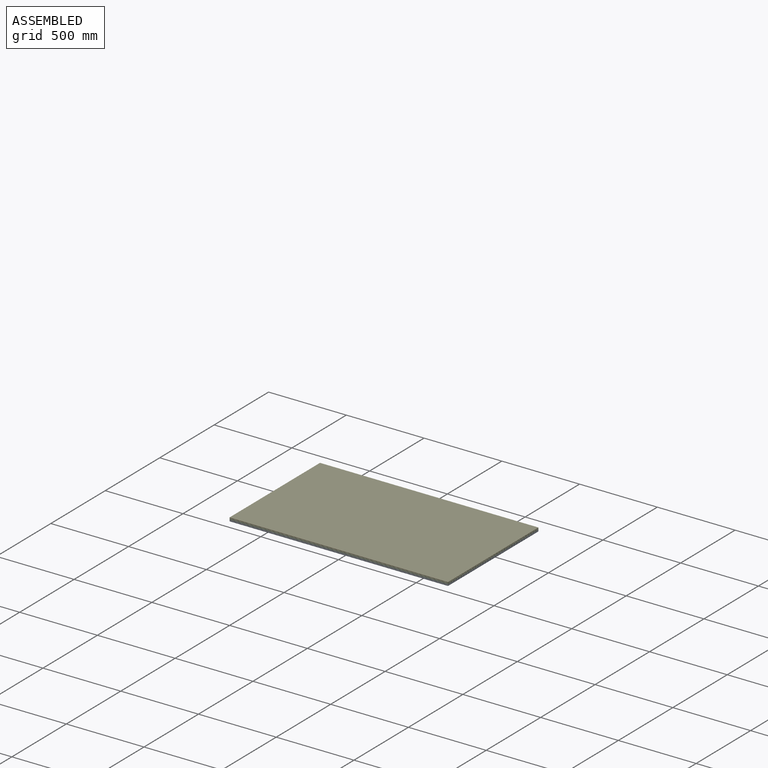
[diagram: assembled view]
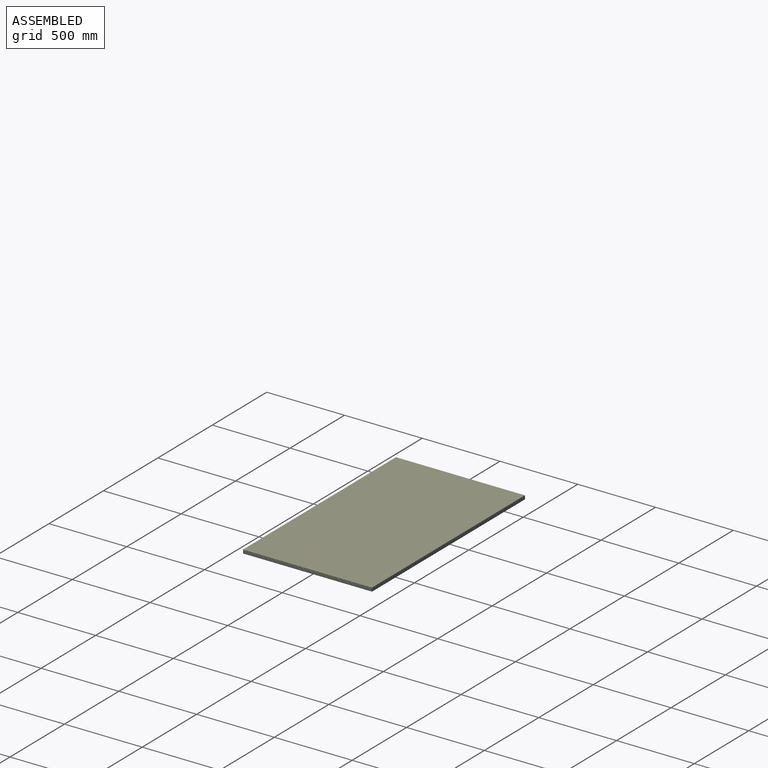
[diagram: assembled view, second angle]
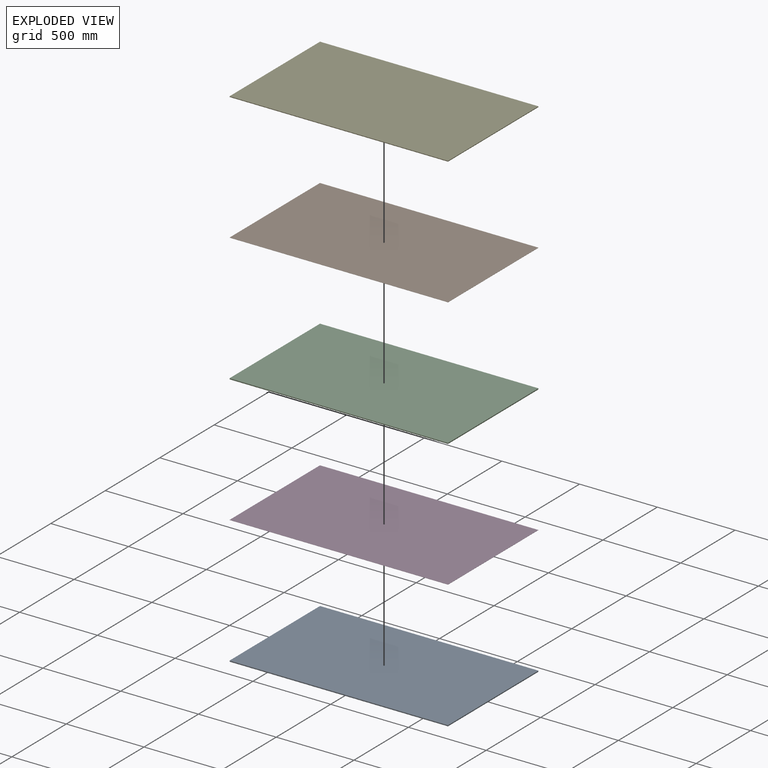
[diagram: exploded view]
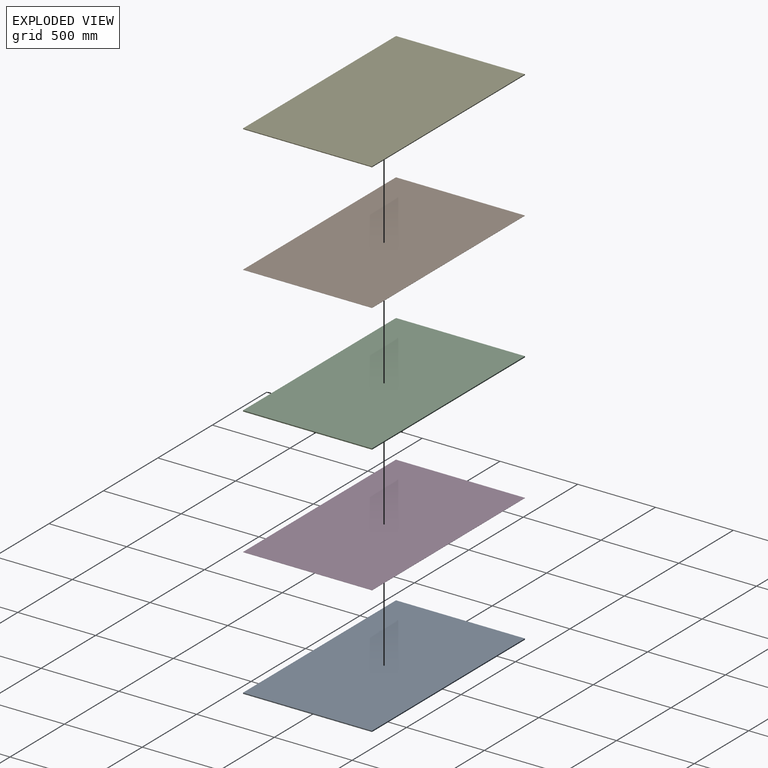
[diagram: exploded view, second angle]
ASSEMBLY  parts=5 mates=4
PART A: 14 faces, bbox 1405x830x8 mm
  f0: plane 1405x6mm, normal (0,1,0), area 8430mm2, adj f1,f3,f7,f11
  f1: plane 830x6mm, normal (-1,0,0), area 4980mm2, adj f0,f2,f6,f10
  f2: plane 1405x6mm, normal (0,-1,0), area 8430mm2, adj f1,f3,f8,f12
  f3: plane 830x6mm, normal (1,0,0), area 4980mm2, adj f0,f2,f9,f13
  f4: plane 1403x828mm, normal (0,0,1), area 1161684mm2, adj f10,f11,f12,f13
  f5: plane 1403x828mm, normal (0,0,-1), area 1161684mm2, adj f6,f7,f8,f9
  f6: plane 830x1mm, normal (-0.71,0,-0.71), area 1172.4mm2, adj f1,f5,f7,f8
  f7: plane 1405x1mm, normal (0,0.71,-0.71), area 1985.6mm2, adj f0,f5,f6,f9
  f8: plane 1405x1mm, normal (0,-0.71,-0.71), area 1985.6mm2, adj f2,f5,f6,f9
  f9: plane 830x1mm, normal (0.71,0,-0.71), area 1172.4mm2, adj f3,f5,f7,f8
  f10: plane 830x1mm, normal (-0.71,0,0.71), area 1172.4mm2, adj f1,f4,f11,f12
  f11: plane 1405x1mm, normal (0,0.71,0.71), area 1985.6mm2, adj f0,f4,f10,f13
  f12: plane 1405x1mm, normal (0,-0.71,0.71), area 1985.6mm2, adj f2,f4,f10,f13
  f13: plane 830x1mm, normal (0.71,0,0.71), area 1172.4mm2, adj f3,f4,f11,f12
PART B: 6 faces, bbox 1405x830x1 mm
  f0: plane 1405x1mm, normal (0,1,0), area 1405mm2, adj f1,f3,f4,f5
  f1: plane 830x1mm, normal (-1,0,0), area 830mm2, adj f0,f2,f4,f5
  f2: plane 1405x1mm, normal (0,-1,0), area 1405mm2, adj f1,f3,f4,f5
  f3: plane 830x1mm, normal (1,0,0), area 830mm2, adj f0,f2,f4,f5
  f4: plane 1405x830mm, normal (0,0,1), area 1166150mm2, adj f0,f1,f2,f3
  f5: plane 1405x830mm, normal (0,0,-1), area 1166150mm2, adj f0,f1,f2,f3
PART C: same geometry as A
PART D: same geometry as B
PART E: 14 faces, bbox 1405x830x6 mm
  f0: plane 1405x4mm, normal (0,1,0), area 5620mm2, adj f1,f3,f7,f11
  f1: plane 830x4mm, normal (-1,0,0), area 3320mm2, adj f0,f2,f6,f10
  f2: plane 1405x4mm, normal (0,-1,0), area 5620mm2, adj f1,f3,f8,f12
  f3: plane 830x4mm, normal (1,0,0), area 3320mm2, adj f0,f2,f9,f13
  f4: plane 1403x828mm, normal (0,0,1), area 1161684mm2, adj f10,f11,f12,f13
  f5: plane 1403x828mm, normal (0,0,-1), area 1161684mm2, adj f6,f7,f8,f9
  f6: plane 830x1mm, normal (-0.71,0,-0.71), area 1172.4mm2, adj f1,f5,f7,f8
  f7: plane 1405x1mm, normal (0,0.71,-0.71), area 1985.6mm2, adj f0,f5,f6,f9
  f8: plane 1405x1mm, normal (0,-0.71,-0.71), area 1985.6mm2, adj f2,f5,f6,f9
  f9: plane 830x1mm, normal (0.71,0,-0.71), area 1172.4mm2, adj f3,f5,f7,f8
  f10: plane 830x1mm, normal (-0.71,0,0.71), area 1172.4mm2, adj f1,f4,f11,f12
  f11: plane 1405x1mm, normal (0,0.71,0.71), area 1985.6mm2, adj f0,f4,f10,f13
  f12: plane 1405x1mm, normal (0,-0.71,0.71), area 1985.6mm2, adj f2,f4,f10,f13
  f13: plane 830x1mm, normal (0.71,0,0.71), area 1172.4mm2, adj f3,f4,f11,f12
PLACE A t=(-665.14,-389.73,-17)mm
PLACE B t=(-6,0,0)mm
PLACE C t=(-665.14,-389.73,-8)mm
PLACE D t=(-6,0,-9)mm
PLACE E t=(-665.14,-389.73,1)mm
MATE fastened D.f4 <-> C.f5  axis (0,0,1) through (-7,0,-8)mm
MATE fastened B.f4 <-> E.f5  axis (0,0,1) through (-7,0,1)mm
MATE fastened D.f5 <-> A.f4  axis (0,0,-1) through (-7,0,-9)mm
MATE fastened C.f4 <-> B.f5  axis (0,0,1) through (-7,0,0)mm
